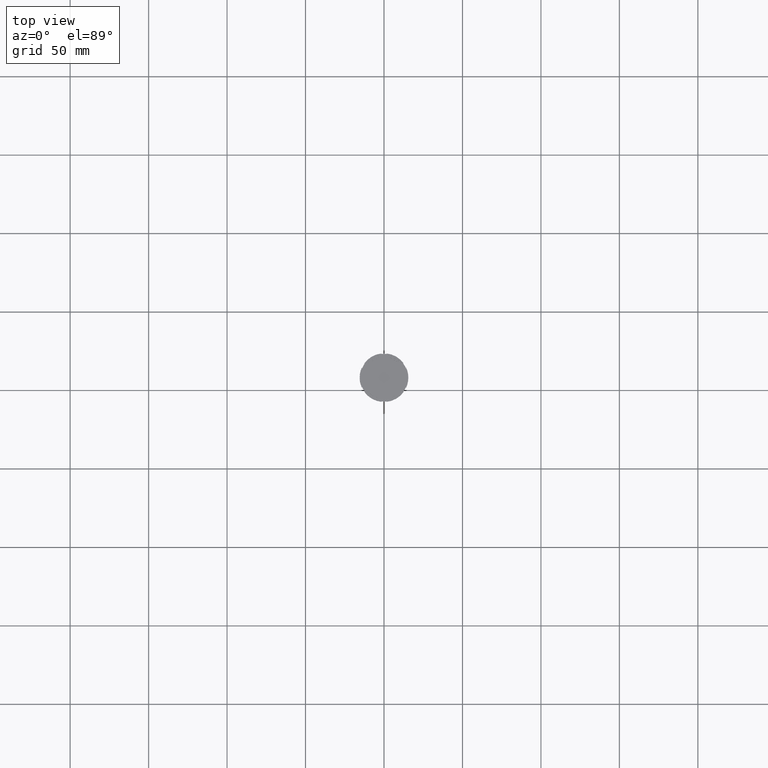
[diagram: clean part render]
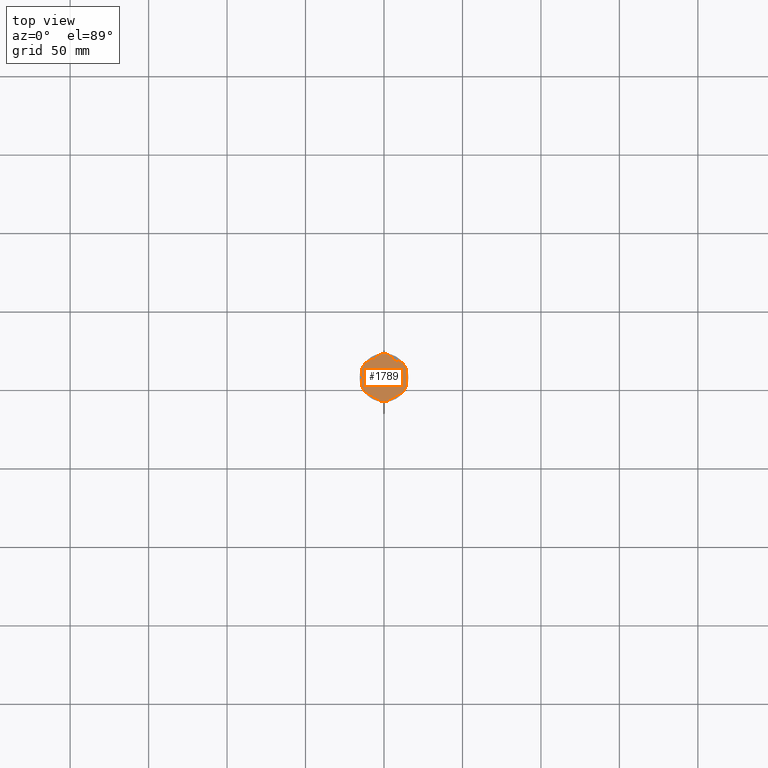
[diagram: same view with one face highlighted and labeled with its STEP entity id]
A machine part, top view. The second image highlights one B-rep face of the part: STEP entity #1789.
In plain terms, the highlighted planar face has unit normal (0, 0, 1).
Its self-contained STEP definition (entity closure, byte-faithful):
#4 = VERTEX_POINT ( 'NONE', #1130 ) ;
#25 = CARTESIAN_POINT ( 'NONE',  ( 1.873597752809482486, -15.08408537037188779, -1.000000000000000000 ) ) ;
#44 = AXIS2_PLACEMENT_3D ( 'NONE', #1109, #937, #2242 ) ;
#96 = AXIS2_PLACEMENT_3D ( 'NONE', #2493, #1658, #2717 ) ;
#116 = EDGE_LOOP ( 'NONE', ( #768, #237 ) ) ;
#117 = DIRECTION ( 'NONE',  ( 1.000000000000000000, 0.000000000000000000, 0.000000000000000000 ) ) ;
#120 = DIRECTION ( 'NONE',  ( -0.8660254037844385966, 0.5000000000000001110, 0.000000000000000000 ) ) ;
#121 = ORIENTED_EDGE ( 'NONE', *, *, #271, .F. ) ;
#127 = EDGE_CURVE ( 'NONE', #1773, #1679, #2128, .T. ) ;
#144 = CARTESIAN_POINT ( 'NONE',  ( 0.000000000000000000, 0.000000000000000000, -1.000000000000000000 ) ) ;
#146 = AXIS2_PLACEMENT_3D ( 'NONE', #2252, #260, #932 ) ;
#147 = EDGE_LOOP ( 'NONE', ( #2286, #1935, #1177, #2624, #245, #808, #2700, #388, #1785, #2861, #392, #1451 ) ) ;
#149 = CARTESIAN_POINT ( 'NONE',  ( 0.000000000000000000, 0.000000000000000000, -1.000000000000000000 ) ) ;
#150 = CARTESIAN_POINT ( 'NONE',  ( 3.347619946770397537, 13.07835772151782905, -1.000000000000000888 ) ) ;
#151 = VERTEX_POINT ( 'NONE', #2062 ) ;
#199 = VERTEX_POINT ( 'NONE', #2854 ) ;
#208 = LINE ( 'NONE', #1832, #688 ) ;
#228 = CARTESIAN_POINT ( 'NONE',  ( -3.347619946770386434, -13.07835772151782905, -1.000000000000000888 ) ) ;
#233 = VERTEX_POINT ( 'NONE', #2170 ) ;
#237 = ORIENTED_EDGE ( 'NONE', *, *, #2337, .F. ) ;
#245 = ORIENTED_EDGE ( 'NONE', *, *, #2022, .T. ) ;
#260 = DIRECTION ( 'NONE',  ( -0.000000000000000000, -0.000000000000000000, -1.000000000000000000 ) ) ;
#271 = EDGE_CURVE ( 'NONE', #151, #1316, #414, .T. ) ;
#272 = AXIS2_PLACEMENT_3D ( 'NONE', #846, #2142, #2197 ) ;
#279 = CARTESIAN_POINT ( 'NONE',  ( 0.000000000000000000, 0.000000000000000000, -1.000000000000000000 ) ) ;
#303 = CARTESIAN_POINT ( 'NONE',  ( -13.00000000000000178, 7.505553499465134060, -1.000000000000000888 ) ) ;
#308 = DIRECTION ( 'NONE',  ( 1.000000000000000000, 0.000000000000000000, 0.000000000000000000 ) ) ;
#332 = AXIS2_PLACEMENT_3D ( 'NONE', #2209, #1166, #668 ) ;
#342 = LINE ( 'NONE', #2536, #1395 ) ;
#361 = EDGE_LOOP ( 'NONE', ( #1289, #497 ) ) ;
#363 = EDGE_LOOP ( 'NONE', ( #515, #1551 ) ) ;
#372 = VECTOR ( 'NONE', #679, 1000.000000000000000 ) ;
#388 = ORIENTED_EDGE ( 'NONE', *, *, #1429, .F. ) ;
#392 = ORIENTED_EDGE ( 'NONE', *, *, #1195, .T. ) ;
#414 = LINE ( 'NONE', #2203, #1741 ) ;
#419 = VECTOR ( 'NONE', #2429, 1000.000000000000114 ) ;
#424 = CARTESIAN_POINT ( 'NONE',  ( 0.000000000000000000, 16.16580753730952225, -1.000000000000000000 ) ) ;
#429 = DIRECTION ( 'NONE',  ( -0.8660254037844387076, -0.4999999999999999445, 0.000000000000000000 ) ) ;
#447 = VERTEX_POINT ( 'NONE', #2877 ) ;
#461 = CARTESIAN_POINT ( 'NONE',  ( 9.652380053229610013, 9.438302776877588229, -1.000000000000000888 ) ) ;
#497 = ORIENTED_EDGE ( 'NONE', *, *, #954, .F. ) ;
#507 = CARTESIAN_POINT ( 'NONE',  ( 0.000000000000000000, 15.01110699893027167, -1.000000000000000888 ) ) ;
#515 = ORIENTED_EDGE ( 'NONE', *, *, #2067, .F. ) ;
#523 = DIRECTION ( 'NONE',  ( 1.073081856240827950E-16, 1.000000000000000000, 0.000000000000000000 ) ) ;
#542 = CARTESIAN_POINT ( 'NONE',  ( 0.000000000000000000, 0.000000000000000000, -1.000000000000000000 ) ) ;
#559 = CIRCLE ( 'NONE', #1616, 15.19999999999999929 ) ;
#626 = EDGE_CURVE ( 'NONE', #1863, #1754, #1823, .T. ) ;
#656 = DIRECTION ( 'NONE',  ( 0.8660254037844387076, -0.5000000000000001110, 0.000000000000000000 ) ) ;
#662 = CARTESIAN_POINT ( 'NONE',  ( -1.873597752809485151, -15.08408537037189312, -1.000000000000000000 ) ) ;
#668 = DIRECTION ( 'NONE',  ( 1.000000000000000000, 0.000000000000000000, 0.000000000000000000 ) ) ;
#679 = DIRECTION ( 'NONE',  ( 0.000000000000000000, -1.000000000000000000, 0.000000000000000000 ) ) ;
#688 = VECTOR ( 'NONE', #2293, 1000.000000000000000 ) ;
#703 = CIRCLE ( 'NONE', #984, 13.50000000000000000 ) ;
#719 = CARTESIAN_POINT ( 'NONE',  ( -12.12640224719051218, -9.164625935592404460, -1.000000000000000000 ) ) ;
#765 = FACE_BOUND ( 'NONE', #116, .T. ) ;
#768 = ORIENTED_EDGE ( 'NONE', *, *, #127, .F. ) ;
#792 = VERTEX_POINT ( 'NONE', #662 ) ;
#808 = ORIENTED_EDGE ( 'NONE', *, *, #2811, .F. ) ;
#846 = CARTESIAN_POINT ( 'NONE',  ( 0.000000000000000000, 0.000000000000000000, -1.000000000000000000 ) ) ;
#856 = DIRECTION ( 'NONE',  ( 0.8660254037844385966, 0.5000000000000000000, 0.000000000000000000 ) ) ;
#867 = DIRECTION ( 'NONE',  ( -0.8660254037844387076, 0.4999999999999997780, 0.000000000000000000 ) ) ;
#876 = CIRCLE ( 'NONE', #1751, 15.19999999999999929 ) ;
#909 = CARTESIAN_POINT ( 'NONE',  ( -14.00000000000000178, 8.082903768654759347, -1.000000000000000000 ) ) ;
#932 = DIRECTION ( 'NONE',  ( 1.000000000000000000, -9.769962616701377556E-15, 0.000000000000000000 ) ) ;
#937 = DIRECTION ( 'NONE',  ( 0.000000000000000000, 0.000000000000000000, 1.000000000000000000 ) ) ;
#948 = VERTEX_POINT ( 'NONE', #25 ) ;
#954 = EDGE_CURVE ( 'NONE', #2199, #992, #208, .T. ) ;
#975 = VECTOR ( 'NONE', #867, 1000.000000000000114 ) ;
#977 = VERTEX_POINT ( 'NONE', #719 ) ;
#981 = AXIS2_PLACEMENT_3D ( 'NONE', #1875, #1509, #1295 ) ;
#984 = AXIS2_PLACEMENT_3D ( 'NONE', #1378, #1982, #2875 ) ;
#991 = EDGE_CURVE ( 'NONE', #447, #1194, #2068, .T. ) ;
#992 = VERTEX_POINT ( 'NONE', #2489 ) ;
#1034 = DIRECTION ( 'NONE',  ( 0.000000000000000000, 0.000000000000000000, 1.000000000000000000 ) ) ;
#1056 = AXIS2_PLACEMENT_3D ( 'NONE', #144, #1034, #1911 ) ;
#1060 = CARTESIAN_POINT ( 'NONE',  ( -1.873597752809482486, 15.08408537037188957, -1.000000000000000000 ) ) ;
#1079 = DIRECTION ( 'NONE',  ( 1.000000000000000000, 0.000000000000000000, 0.000000000000000000 ) ) ;
#1091 = CARTESIAN_POINT ( 'NONE',  ( 14.00000000000000000, 5.919459434779493989, -1.000000000000000000 ) ) ;
#1102 = CARTESIAN_POINT ( 'NONE',  ( 12.12640224719051751, -9.164625935592392025, -1.000000000000000000 ) ) ;
#1109 = CARTESIAN_POINT ( 'NONE',  ( 0.000000000000000000, 0.000000000000000000, -1.000000000000000000 ) ) ;
#1111 = VECTOR ( 'NONE', #856, 1000.000000000000227 ) ;
#1130 = CARTESIAN_POINT ( 'NONE',  ( 1.873597752809481598, 15.08408537037189134, -1.000000000000000000 ) ) ;
#1150 = EDGE_LOOP ( 'NONE', ( #1191, #2598, #1437 ) ) ;
#1163 = EDGE_CURVE ( 'NONE', #1250, #4, #1521, .T. ) ;
#1166 = DIRECTION ( 'NONE',  ( 0.000000000000000000, 0.000000000000000000, 1.000000000000000000 ) ) ;
#1171 = CARTESIAN_POINT ( 'NONE',  ( 13.00000000000000178, 3.640054944640248369, -1.000000000000000888 ) ) ;
#1177 = ORIENTED_EDGE ( 'NONE', *, *, #1253, .T. ) ;
#1183 = EDGE_CURVE ( 'NONE', #1312, #2516, #1891, .T. ) ;
#1189 = LINE ( 'NONE', #507, #2086 ) ;
#1191 = ORIENTED_EDGE ( 'NONE', *, *, #2653, .F. ) ;
#1194 = VERTEX_POINT ( 'NONE', #1091 ) ;
#1195 = EDGE_CURVE ( 'NONE', #948, #1306, #1916, .T. ) ;
#1214 = CARTESIAN_POINT ( 'NONE',  ( -3.347619946770386434, 13.07835772151782905, -1.000000000000000888 ) ) ;
#1215 = CIRCLE ( 'NONE', #332, 13.50000000000000000 ) ;
#1225 = CARTESIAN_POINT ( 'NONE',  ( -14.00000000000000178, 5.919459434779493989, -1.000000000000000000 ) ) ;
#1232 = EDGE_CURVE ( 'NONE', #2516, #1312, #1278, .T. ) ;
#1250 = VERTEX_POINT ( 'NONE', #1060 ) ;
#1253 = EDGE_CURVE ( 'NONE', #233, #4, #1942, .T. ) ;
#1262 = CIRCLE ( 'NONE', #2418, 15.19999999999999929 ) ;
#1278 = LINE ( 'NONE', #1953, #2322 ) ;
#1281 = EDGE_CURVE ( 'NONE', #1316, #151, #1707, .T. ) ;
#1288 = ORIENTED_EDGE ( 'NONE', *, *, #1281, .F. ) ;
#1289 = ORIENTED_EDGE ( 'NONE', *, *, #2164, .F. ) ;
#1295 = DIRECTION ( 'NONE',  ( 1.000000000000000000, 0.000000000000000000, 0.000000000000000000 ) ) ;
#1306 = VERTEX_POINT ( 'NONE', #1102 ) ;
#1312 = VERTEX_POINT ( 'NONE', #461 ) ;
#1316 = VERTEX_POINT ( 'NONE', #1349 ) ;
#1335 = VECTOR ( 'NONE', #2718, 1000.000000000000000 ) ;
#1349 = CARTESIAN_POINT ( 'NONE',  ( 3.347619946770387322, -13.07835772151783083, -1.000000000000000888 ) ) ;
#1350 = CARTESIAN_POINT ( 'NONE',  ( -14.00000000000000178, -8.082903768654762899, -1.000000000000000000 ) ) ;
#1378 = CARTESIAN_POINT ( 'NONE',  ( 0.000000000000000000, 0.000000000000000000, -1.000000000000000000 ) ) ;
#1391 = FACE_BOUND ( 'NONE', #1150, .T. ) ;
#1395 = VECTOR ( 'NONE', #120, 1000.000000000000000 ) ;
#1420 = PLANE ( 'NONE',  #96 ) ;
#1423 = CARTESIAN_POINT ( 'NONE',  ( 0.000000000000000000, 0.000000000000000000, -1.000000000000000000 ) ) ;
#1429 = EDGE_CURVE ( 'NONE', #977, #1817, #876, .T. ) ;
#1434 = DIRECTION ( 'NONE',  ( 0.8660254037844385966, 0.5000000000000001110, -0.000000000000000000 ) ) ;
#1437 = ORIENTED_EDGE ( 'NONE', *, *, #2597, .F. ) ;
#1438 = VERTEX_POINT ( 'NONE', #1225 ) ;
#1448 = CARTESIAN_POINT ( 'NONE',  ( -13.00000000000000178, -3.640054944640251033, -1.000000000000000888 ) ) ;
#1451 = ORIENTED_EDGE ( 'NONE', *, *, #1493, .F. ) ;
#1469 = EDGE_LOOP ( 'NONE', ( #2711, #2423 ) ) ;
#1483 = AXIS2_PLACEMENT_3D ( 'NONE', #279, #1815, #2709 ) ;
#1493 = EDGE_CURVE ( 'NONE', #447, #1306, #559, .T. ) ;
#1496 = DIRECTION ( 'NONE',  ( 0.000000000000000000, 0.000000000000000000, 1.000000000000000000 ) ) ;
#1509 = DIRECTION ( 'NONE',  ( 0.000000000000000000, 0.000000000000000000, 1.000000000000000000 ) ) ;
#1521 = CIRCLE ( 'NONE', #272, 15.19999999999999929 ) ;
#1551 = ORIENTED_EDGE ( 'NONE', *, *, #1814, .F. ) ;
#1616 = AXIS2_PLACEMENT_3D ( 'NONE', #1423, #2733, #2095 ) ;
#1643 = FACE_OUTER_BOUND ( 'NONE', #147, .T. ) ;
#1658 = DIRECTION ( 'NONE',  ( 0.000000000000000000, 0.000000000000000000, 1.000000000000000000 ) ) ;
#1660 = AXIS2_PLACEMENT_3D ( 'NONE', #2048, #2425, #2481 ) ;
#1664 = CARTESIAN_POINT ( 'NONE',  ( 0.000000000000000000, 0.000000000000000000, -1.000000000000000000 ) ) ;
#1679 = VERTEX_POINT ( 'NONE', #228 ) ;
#1686 = EDGE_CURVE ( 'NONE', #1438, #1817, #2263, .T. ) ;
#1707 = CIRCLE ( 'NONE', #1660, 13.50000000000000000 ) ;
#1712 = CIRCLE ( 'NONE', #981, 13.50000000000000000 ) ;
#1741 = VECTOR ( 'NONE', #429, 1000.000000000000000 ) ;
#1745 = CARTESIAN_POINT ( 'NONE',  ( 14.00000000000000178, 8.082903768654762899, -1.000000000000000000 ) ) ;
#1751 = AXIS2_PLACEMENT_3D ( 'NONE', #542, #2123, #117 ) ;
#1754 = VERTEX_POINT ( 'NONE', #2436 ) ;
#1773 = VERTEX_POINT ( 'NONE', #2872 ) ;
#1780 = VERTEX_POINT ( 'NONE', #2448 ) ;
#1785 = ORIENTED_EDGE ( 'NONE', *, *, #2579, .T. ) ;
#1789 = ADVANCED_FACE ( 'NONE', ( #2009, #1865, #2070, #765, #1391, #2729, #1643 ), #1420, .T. ) ;
#1806 = CIRCLE ( 'NONE', #146, 15.19999999999999929 ) ;
#1811 = DIRECTION ( 'NONE',  ( 0.8660254037844388186, -0.4999999999999997780, 0.000000000000000000 ) ) ;
#1814 = EDGE_CURVE ( 'NONE', #2389, #2274, #1189, .T. ) ;
#1815 = DIRECTION ( 'NONE',  ( -0.000000000000000000, -0.000000000000000000, -1.000000000000000000 ) ) ;
#1817 = VERTEX_POINT ( 'NONE', #2747 ) ;
#1823 = LINE ( 'NONE', #303, #1335 ) ;
#1832 = CARTESIAN_POINT ( 'NONE',  ( 13.00000000000000000, -7.505553499465137612, -1.000000000000000888 ) ) ;
#1863 = VERTEX_POINT ( 'NONE', #1448 ) ;
#1865 = FACE_BOUND ( 'NONE', #361, .T. ) ;
#1875 = CARTESIAN_POINT ( 'NONE',  ( 0.000000000000000000, 0.000000000000000000, -1.000000000000000000 ) ) ;
#1891 = CIRCLE ( 'NONE', #1981, 13.50000000000000000 ) ;
#1911 = DIRECTION ( 'NONE',  ( 1.000000000000000000, 0.000000000000000000, 0.000000000000000000 ) ) ;
#1916 = LINE ( 'NONE', #2817, #1111 ) ;
#1935 = ORIENTED_EDGE ( 'NONE', *, *, #2550, .F. ) ;
#1942 = LINE ( 'NONE', #1745, #975 ) ;
#1944 = CIRCLE ( 'NONE', #1483, 15.19999999999999929 ) ;
#1953 = CARTESIAN_POINT ( 'NONE',  ( 13.00000000000000355, 7.505553499465135836, -1.000000000000000888 ) ) ;
#1981 = AXIS2_PLACEMENT_3D ( 'NONE', #149, #1496, #1079 ) ;
#1982 = DIRECTION ( 'NONE',  ( 0.000000000000000000, 0.000000000000000000, 1.000000000000000000 ) ) ;
#2009 = FACE_BOUND ( 'NONE', #1469, .T. ) ;
#2022 = EDGE_CURVE ( 'NONE', #1250, #1780, #2851, .T. ) ;
#2026 = LINE ( 'NONE', #1350, #2093 ) ;
#2034 = EDGE_LOOP ( 'NONE', ( #1288, #121 ) ) ;
#2048 = CARTESIAN_POINT ( 'NONE',  ( 0.000000000000000000, 0.000000000000000000, -1.000000000000000000 ) ) ;
#2062 = CARTESIAN_POINT ( 'NONE',  ( 9.652380053229613566, -9.438302776877582900, -1.000000000000000888 ) ) ;
#2067 = EDGE_CURVE ( 'NONE', #2274, #2389, #1712, .T. ) ;
#2068 = LINE ( 'NONE', #2713, #2271 ) ;
#2070 = FACE_BOUND ( 'NONE', #2034, .T. ) ;
#2086 = VECTOR ( 'NONE', #1434, 1000.000000000000000 ) ;
#2093 = VECTOR ( 'NONE', #1811, 1000.000000000000114 ) ;
#2095 = DIRECTION ( 'NONE',  ( 1.000000000000000000, 0.000000000000000000, 0.000000000000000000 ) ) ;
#2123 = DIRECTION ( 'NONE',  ( -0.000000000000000000, -0.000000000000000000, -1.000000000000000000 ) ) ;
#2128 = CIRCLE ( 'NONE', #1056, 13.50000000000000000 ) ;
#2142 = DIRECTION ( 'NONE',  ( -0.000000000000000000, -0.000000000000000000, -1.000000000000000000 ) ) ;
#2151 = EDGE_CURVE ( 'NONE', #948, #792, #1944, .T. ) ;
#2164 = EDGE_CURVE ( 'NONE', #992, #2199, #2278, .T. ) ;
#2170 = CARTESIAN_POINT ( 'NONE',  ( 12.12640224719051574, 9.164625935592399131, -1.000000000000000000 ) ) ;
#2197 = DIRECTION ( 'NONE',  ( 1.000000000000000000, -5.329070518200752183E-15, 0.000000000000000000 ) ) ;
#2199 = VERTEX_POINT ( 'NONE', #1171 ) ;
#2203 = CARTESIAN_POINT ( 'NONE',  ( -8.673617379884035472E-16, -15.01110699893027167, -1.000000000000000888 ) ) ;
#2209 = CARTESIAN_POINT ( 'NONE',  ( 0.000000000000000000, 0.000000000000000000, -1.000000000000000000 ) ) ;
#2242 = DIRECTION ( 'NONE',  ( 1.000000000000000000, 0.000000000000000000, 0.000000000000000000 ) ) ;
#2252 = CARTESIAN_POINT ( 'NONE',  ( 0.000000000000000000, 0.000000000000000000, -1.000000000000000000 ) ) ;
#2263 = LINE ( 'NONE', #909, #372 ) ;
#2271 = VECTOR ( 'NONE', #523, 1000.000000000000000 ) ;
#2274 = VERTEX_POINT ( 'NONE', #1214 ) ;
#2278 = CIRCLE ( 'NONE', #44, 13.50000000000000000 ) ;
#2286 = ORIENTED_EDGE ( 'NONE', *, *, #991, .T. ) ;
#2293 = DIRECTION ( 'NONE',  ( -2.311253228826398661E-16, -1.000000000000000000, 0.000000000000000000 ) ) ;
#2316 = CARTESIAN_POINT ( 'NONE',  ( -9.652380053229617118, 9.438302776877577571, -1.000000000000000888 ) ) ;
#2322 = VECTOR ( 'NONE', #656, 999.9999999999998863 ) ;
#2337 = EDGE_CURVE ( 'NONE', #1679, #1773, #342, .T. ) ;
#2389 = VERTEX_POINT ( 'NONE', #2316 ) ;
#2418 = AXIS2_PLACEMENT_3D ( 'NONE', #1664, #2498, #308 ) ;
#2423 = ORIENTED_EDGE ( 'NONE', *, *, #1232, .F. ) ;
#2425 = DIRECTION ( 'NONE',  ( 0.000000000000000000, 0.000000000000000000, 1.000000000000000000 ) ) ;
#2429 = DIRECTION ( 'NONE',  ( -0.8660254037844385966, -0.4999999999999999445, 0.000000000000000000 ) ) ;
#2436 = CARTESIAN_POINT ( 'NONE',  ( -13.00000000000000178, 3.640054944640251033, -1.000000000000000888 ) ) ;
#2448 = CARTESIAN_POINT ( 'NONE',  ( -12.12640224719051751, 9.164625935592393802, -1.000000000000000000 ) ) ;
#2481 = DIRECTION ( 'NONE',  ( 1.000000000000000000, 0.000000000000000000, 0.000000000000000000 ) ) ;
#2489 = CARTESIAN_POINT ( 'NONE',  ( 13.00000000000000178, -3.640054944640254142, -1.000000000000000888 ) ) ;
#2493 = CARTESIAN_POINT ( 'NONE',  ( 0.000000000000000000, 0.000000000000000000, -1.000000000000000000 ) ) ;
#2498 = DIRECTION ( 'NONE',  ( -0.000000000000000000, -0.000000000000000000, -1.000000000000000000 ) ) ;
#2516 = VERTEX_POINT ( 'NONE', #150 ) ;
#2536 = CARTESIAN_POINT ( 'NONE',  ( -13.00000000000000178, -7.505553499465134060, -1.000000000000000888 ) ) ;
#2550 = EDGE_CURVE ( 'NONE', #233, #1194, #1806, .T. ) ;
#2579 = EDGE_CURVE ( 'NONE', #977, #792, #2026, .T. ) ;
#2597 = EDGE_CURVE ( 'NONE', #199, #1863, #1215, .T. ) ;
#2598 = ORIENTED_EDGE ( 'NONE', *, *, #626, .F. ) ;
#2624 = ORIENTED_EDGE ( 'NONE', *, *, #1163, .F. ) ;
#2653 = EDGE_CURVE ( 'NONE', #1754, #199, #703, .T. ) ;
#2700 = ORIENTED_EDGE ( 'NONE', *, *, #1686, .T. ) ;
#2709 = DIRECTION ( 'NONE',  ( 1.000000000000000000, 0.000000000000000000, 0.000000000000000000 ) ) ;
#2711 = ORIENTED_EDGE ( 'NONE', *, *, #1183, .F. ) ;
#2713 = CARTESIAN_POINT ( 'NONE',  ( 14.00000000000000000, -8.082903768654761123, -1.000000000000000000 ) ) ;
#2717 = DIRECTION ( 'NONE',  ( 1.000000000000000000, 0.000000000000000000, -0.000000000000000000 ) ) ;
#2718 = DIRECTION ( 'NONE',  ( 0.000000000000000000, 1.000000000000000000, 0.000000000000000000 ) ) ;
#2729 = FACE_BOUND ( 'NONE', #363, .T. ) ;
#2733 = DIRECTION ( 'NONE',  ( -0.000000000000000000, -0.000000000000000000, -1.000000000000000000 ) ) ;
#2747 = CARTESIAN_POINT ( 'NONE',  ( -14.00000000000000178, -5.919459434779493989, -1.000000000000000000 ) ) ;
#2811 = EDGE_CURVE ( 'NONE', #1438, #1780, #1262, .T. ) ;
#2817 = CARTESIAN_POINT ( 'NONE',  ( 1.740335835716699810E-15, -16.16580753730952225, -1.000000000000000000 ) ) ;
#2851 = LINE ( 'NONE', #424, #419 ) ;
#2854 = CARTESIAN_POINT ( 'NONE',  ( -13.50000000000000000, 0.000000000000000000, -1.000000000000000000 ) ) ;
#2861 = ORIENTED_EDGE ( 'NONE', *, *, #2151, .F. ) ;
#2872 = CARTESIAN_POINT ( 'NONE',  ( -9.652380053229617118, -9.438302776877577571, -1.000000000000000888 ) ) ;
#2875 = DIRECTION ( 'NONE',  ( 1.000000000000000000, 0.000000000000000000, 0.000000000000000000 ) ) ;
#2877 = CARTESIAN_POINT ( 'NONE',  ( 14.00000000000000000, -5.919459434779497542, -1.000000000000000000 ) ) ;